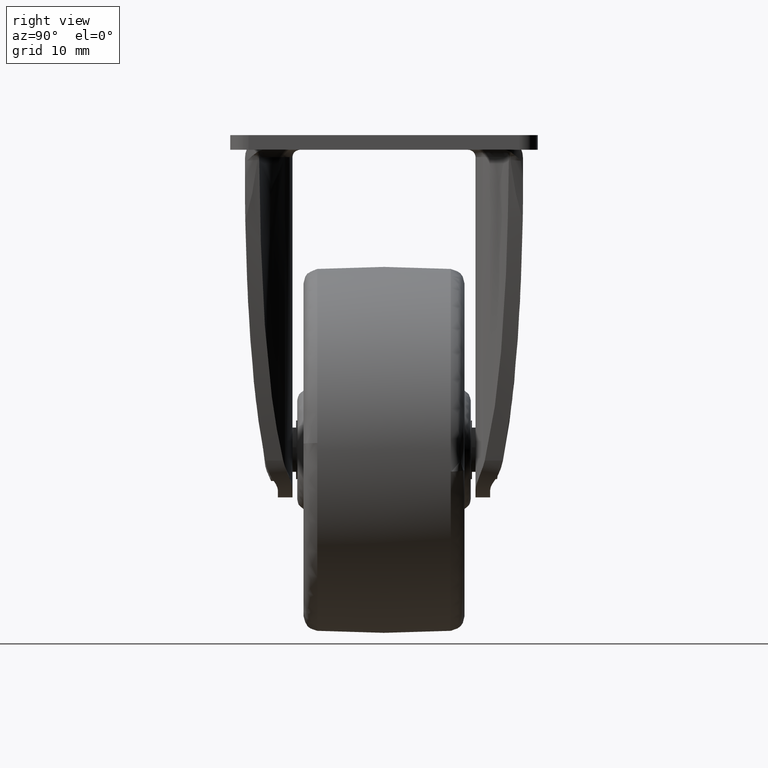
[diagram: clean part render]
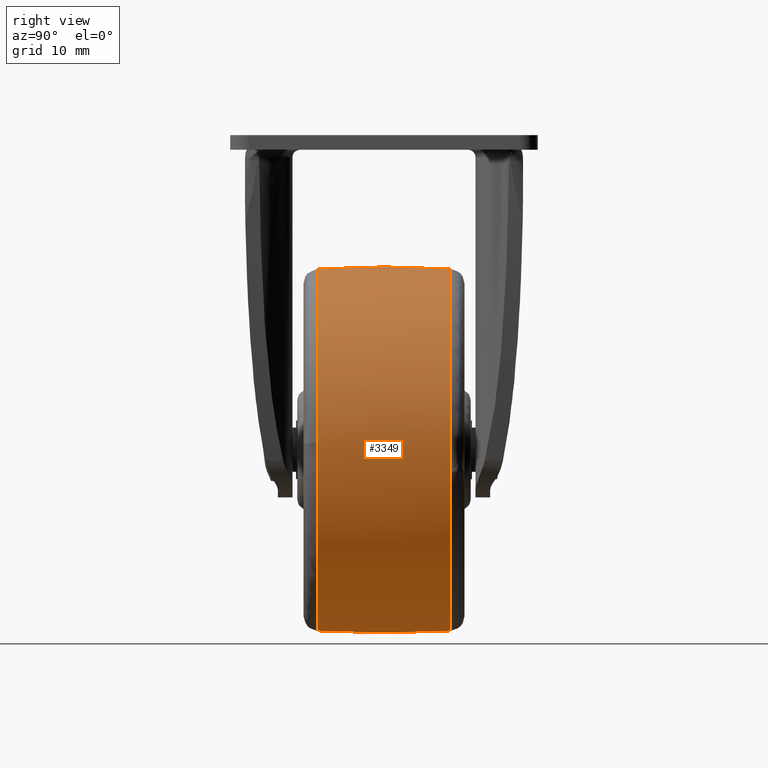
[diagram: same view with one face highlighted and labeled with its STEP entity id]
A machine part, right view. The second image highlights one B-rep face of the part: STEP entity #3349.
In plain terms, the highlighted face is a freeform B-spline surface patch.
Its self-contained STEP definition (entity closure, byte-faithful):
#2238=CARTESIAN_POINT('',(6.689324917442004,-9.121621713731903,-66.800206337786008));
#2239=VERTEX_POINT('',#2238);
#2253=CARTESIAN_POINT('',(24.704830497591310,-9.121624188660775,-42.068208362229058));
#2254=VERTEX_POINT('',#2253);
#2255=CARTESIAN_POINT('',(6.689324917442004,-9.121621713731903,-66.800206337786008));
#2256=CARTESIAN_POINT('',(24.722396517661792,-9.121622222126335,-61.731801777029681));
#2257=CARTESIAN_POINT('',(24.722396517661799,-9.121624099825681,-43.000000150981087));
#2258=CARTESIAN_POINT('',(24.722396517661799,-9.121624146544267,-42.533938680403537));
#2259=CARTESIAN_POINT('',(24.704830497591306,-9.121624188660775,-42.068208362229058));
#2267=(BOUNDED_CURVE()B_SPLINE_CURVE(2,(#2255,#2256,#2257,#2258,#2259),.UNSPECIFIED.,.F.,.U.)B_SPLINE_CURVE_WITH_KNOTS((3,2,3),(0.046107938924666,0.250000000000000,0.256613472520419),.UNSPECIFIED.)CURVE()GEOMETRIC_REPRESENTATION_ITEM()RATIONAL_B_SPLINE_CURVE((0.911887946995312,0.761125591764546,1.0,0.992251834983841,0.984913608179026))REPRESENTATION_ITEM(''));
#2268=EDGE_CURVE('',#2239,#2254,#2267,.T.);
#2367=CARTESIAN_POINT('',(0.0,-9.121626578029773,-18.277603784300371));
#2368=VERTEX_POINT('',#2367);
#2369=CARTESIAN_POINT('',(24.704830497591306,-9.121624188660775,-42.068208362229058));
#2370=CARTESIAN_POINT('',(23.807520620799281,-9.121626578029773,-18.277603784300371));
#2371=CARTESIAN_POINT('',(0.0,-9.121626578029773,-18.277603784300371));
#2379=(BOUNDED_CURVE()B_SPLINE_CURVE(2,(#2369,#2370,#2371),.UNSPECIFIED.,.F.,.U.)B_SPLINE_CURVE_WITH_KNOTS((3,3),(0.256613472520419,0.500000000000000),.UNSPECIFIED.)CURVE()GEOMETRIC_REPRESENTATION_ITEM()RATIONAL_B_SPLINE_CURVE((0.984913608179026,0.714854946202707,1.0))REPRESENTATION_ITEM(''));
#2380=EDGE_CURVE('',#2254,#2368,#2379,.T.);
#2382=CARTESIAN_POINT('',(-24.557048597239341,-9.121634293194809,-40.145492057110388));
#2383=VERTEX_POINT('',#2382);
#2397=CARTESIAN_POINT('',(0.0,-9.121621621621589,-67.722396517661792));
#2398=VERTEX_POINT('',#2397);
#2399=CARTESIAN_POINT('',(-24.557048597239337,-9.121634293194809,-40.145492057110381));
#2400=CARTESIAN_POINT('',(-24.722395770564820,-9.121633966383811,-41.567957210385920));
#2401=CARTESIAN_POINT('',(-24.722395792775419,-9.121633599383870,-43.000000084260677));
#2402=CARTESIAN_POINT('',(-24.722396176213106,-9.121627263597260,-67.722396557351729));
#2403=CARTESIAN_POINT('',(0.0,-9.121621621621589,-67.722396517661792));
#2411=(BOUNDED_CURVE()B_SPLINE_CURVE(2,(#2399,#2400,#2401,#2402,#2403),.UNSPECIFIED.,.F.,.U.)B_SPLINE_CURVE_WITH_KNOTS((3,2,3),(0.730000306038309,0.750000000000000,1.0),.UNSPECIFIED.)CURVE()GEOMETRIC_REPRESENTATION_ITEM()RATIONAL_B_SPLINE_CURVE((0.956886720549122,0.976568901041105,1.0,0.707106781186548,1.0))REPRESENTATION_ITEM(''));
#2412=EDGE_CURVE('',#2383,#2398,#2411,.T.);
#2414=CARTESIAN_POINT('',(0.0,-9.121621621621589,-67.722396517661792));
#2415=CARTESIAN_POINT('',(3.408229018041169,-9.121621621621589,-67.722396517661792));
#2416=CARTESIAN_POINT('',(6.689324917442004,-9.121621713731903,-66.800206337786008));
#2424=(BOUNDED_CURVE()B_SPLINE_CURVE(2,(#2414,#2415,#2416),.UNSPECIFIED.,.F.,.U.)B_SPLINE_CURVE_WITH_KNOTS((3,3),(0.0,0.046107938924666),.UNSPECIFIED.)CURVE()GEOMETRIC_REPRESENTATION_ITEM()RATIONAL_B_SPLINE_CURVE((1.0,0.945981189422002,0.911887946995312))REPRESENTATION_ITEM(''));
#2425=EDGE_CURVE('',#2398,#2239,#2424,.T.);
#2460=CARTESIAN_POINT('',(24.544444815158379,9.121622620066162,-45.960931774214323));
#2461=VERTEX_POINT('',#2460);
#2462=CARTESIAN_POINT('',(0.0,9.121623894445101,-18.277603620806701));
#2463=VERTEX_POINT('',#2462);
#2464=CARTESIAN_POINT('',(24.544444815158379,9.121622620066162,-45.960931774214323));
#2465=CARTESIAN_POINT('',(24.722396517661799,9.121622689735146,-44.485813361554349));
#2466=CARTESIAN_POINT('',(24.722396517661799,9.121622758033364,-43.000000069234247));
#2467=CARTESIAN_POINT('',(24.722396517661789,9.121623894445101,-18.277603620806708));
#2468=CARTESIAN_POINT('',(0.0,9.121623894445101,-18.277603620806701));
#2476=(BOUNDED_CURVE()B_SPLINE_CURVE(2,(#2464,#2465,#2466,#2467,#2468),.UNSPECIFIED.,.F.,.U.)B_SPLINE_CURVE_WITH_KNOTS((3,2,3),(0.229267596699547,0.250000000000000,0.500000000000000),.UNSPECIFIED.)CURVE()GEOMETRIC_REPRESENTATION_ITEM()RATIONAL_B_SPLINE_CURVE((0.955449598528834,0.975710478654367,1.0,0.707106781186548,1.0))REPRESENTATION_ITEM(''));
#2477=EDGE_CURVE('',#2461,#2463,#2476,.T.);
#2526=CARTESIAN_POINT('',(-24.673611907780160,9.121631621725744,-41.447667916856901));
#2527=VERTEX_POINT('',#2526);
#2541=CARTESIAN_POINT('',(-24.557048732616071,9.121631869949166,-40.145491943116667));
#2542=VERTEX_POINT('',#2541);
#2543=CARTESIAN_POINT('',(-24.557048732616071,9.121631869949166,-40.145491943116667));
#2544=CARTESIAN_POINT('',(-24.632551927697214,9.121631749254613,-40.795038352630378));
#2545=CARTESIAN_POINT('',(-24.673611907780160,9.121631621725744,-41.447667916856894));
#2553=(BOUNDED_CURVE()B_SPLINE_CURVE(2,(#2543,#2544,#2545),.UNSPECIFIED.,.F.,.U.)B_SPLINE_CURVE_WITH_KNOTS((3,3),(0.730000305370509,0.739031910515449),.UNSPECIFIED.)CURVE()GEOMETRIC_REPRESENTATION_ITEM()RATIONAL_B_SPLINE_CURVE((0.956886719234726,0.965774939314741,0.975427679973252))REPRESENTATION_ITEM(''));
#2554=EDGE_CURVE('',#2542,#2527,#2553,.T.);
#2595=CARTESIAN_POINT('',(0.0,9.121621621621630,-67.722396517661792));
#2596=VERTEX_POINT('',#2595);
#2597=CARTESIAN_POINT('',(0.0,9.121621621621630,-67.722396517661792));
#2598=CARTESIAN_POINT('',(21.919239359861798,9.121621621621630,-67.722396517661792));
#2599=CARTESIAN_POINT('',(24.544444815158382,9.121622620066162,-45.960931774214323));
#2607=(BOUNDED_CURVE()B_SPLINE_CURVE(2,(#2597,#2598,#2599),.UNSPECIFIED.,.F.,.U.)B_SPLINE_CURVE_WITH_KNOTS((3,3),(0.0,0.229267596699547),.UNSPECIFIED.)CURVE()GEOMETRIC_REPRESENTATION_ITEM()RATIONAL_B_SPLINE_CURVE((1.0,0.731396302532181,0.955449598528834))REPRESENTATION_ITEM(''));
#2608=EDGE_CURVE('',#2596,#2461,#2607,.T.);
#2610=CARTESIAN_POINT('',(-24.673611907780160,9.121631621725744,-41.447667916856901));
#2611=CARTESIAN_POINT('',(-24.722395921646239,9.121631469852337,-42.223067442947936));
#2612=CARTESIAN_POINT('',(-24.722395931391990,9.121631308819000,-43.000000068147941));
#2613=CARTESIAN_POINT('',(-24.722396241506708,9.121626184655231,-67.722396549762024));
#2614=CARTESIAN_POINT('',(0.0,9.121621621621630,-67.722396517661792));
#2622=(BOUNDED_CURVE()B_SPLINE_CURVE(2,(#2610,#2611,#2612,#2613,#2614),.UNSPECIFIED.,.F.,.U.)B_SPLINE_CURVE_WITH_KNOTS((3,2,3),(0.739031910515448,0.750000000000000,1.0),.UNSPECIFIED.)CURVE()GEOMETRIC_REPRESENTATION_ITEM()RATIONAL_B_SPLINE_CURVE((0.975427679973251,0.987150083866542,1.0,0.707106781186548,1.0))REPRESENTATION_ITEM(''));
#2623=EDGE_CURVE('',#2527,#2596,#2622,.T.);
#3278=CARTESIAN_POINT('',(-24.499261751210518,-10.030940992342105,-40.152164881218859));
#3279=CARTESIAN_POINT('',(-25.167068610948501,-2.432914E-014,-40.074537896086113));
#3280=CARTESIAN_POINT('',(-24.499261751210533,10.030940992342055,-40.152164881218859));
#3281=CARTESIAN_POINT('',(-24.664224926360241,-10.030940992342105,-41.571304627284498));
#3282=CARTESIAN_POINT('',(-25.336528392611825,-2.582536E-014,-41.532360899915709));
#3283=CARTESIAN_POINT('',(-24.664224926360252,10.030940992342055,-41.571304627284498));
#3284=CARTESIAN_POINT('',(-24.664224926360241,-10.030940992342108,-43.000000000000007));
#3285=CARTESIAN_POINT('',(-25.336528392611825,-2.813026E-014,-43.000000000000007));
#3286=CARTESIAN_POINT('',(-24.664224926360241,10.030940992342050,-43.000000000000007));
#3287=CARTESIAN_POINT('',(-24.664224926360244,-10.030940992342110,-67.664224926360234));
#3288=CARTESIAN_POINT('',(-25.336528392611825,-3.017959E-014,-68.336528392611825));
#3289=CARTESIAN_POINT('',(-24.664224926360244,10.030940992342048,-67.664224926360234));
#3290=CARTESIAN_POINT('',(0.0,-10.030940992342108,-67.664224926360234));
#3291=CARTESIAN_POINT('',(0.0,-2.813026E-014,-68.336528392611825));
#3292=CARTESIAN_POINT('',(0.0,10.030940992342050,-67.664224926360234));
#3293=CARTESIAN_POINT('',(24.664224926360227,-10.030940992342110,-67.664224926360234));
#3294=CARTESIAN_POINT('',(25.336528392611825,-3.017959E-014,-68.336528392611825));
#3295=CARTESIAN_POINT('',(24.664224926360244,10.030940992342048,-67.664224926360234));
#3296=CARTESIAN_POINT('',(24.664224926360241,-10.030940992342108,-43.000000000000007));
#3297=CARTESIAN_POINT('',(25.336528392611825,-2.813026E-014,-43.000000000000007));
#3298=CARTESIAN_POINT('',(24.664224926360241,10.030940992342050,-43.000000000000007));
#3299=CARTESIAN_POINT('',(24.664224926360244,-10.030940992342110,-18.335775073639752));
#3300=CARTESIAN_POINT('',(25.336528392611825,-3.017959E-014,-17.663471607388175));
#3301=CARTESIAN_POINT('',(24.664224926360244,10.030940992342048,-18.335775073639752));
#3302=CARTESIAN_POINT('',(0.0,-10.030940992342108,-18.335775073639752));
#3303=CARTESIAN_POINT('',(0.0,-2.813026E-014,-17.663471607388168));
#3304=CARTESIAN_POINT('',(0.0,10.030940992342050,-18.335775073639752));
#3312=(BOUNDED_SURFACE()B_SPLINE_SURFACE(2,2,((#3278,#3281,#3284,#3287,#3290,#3293,#3296,#3299,#3302),(#3279,#3282,#3285,#3288,#3291,#3294,#3297,#3300,#3303),(#3280,#3283,#3286,#3289,#3292,#3295,#3298,#3301,#3304)),.UNSPECIFIED.,.F.,.F.,.U.)B_SPLINE_SURFACE_WITH_KNOTS((3,3),(3,2,2,2,3),(0.0,20.084361411123592),(0.0,3.313707807691297,44.735064045000797,86.156420282310307,127.577776519619800),.UNSPECIFIED.)GEOMETRIC_REPRESENTATION_ITEM()RATIONAL_B_SPLINE_SURFACE(((0.878128461365174,0.896190896982613,0.917693795672736,0.648907505973014,0.917693795672736,0.648907505973014,0.917693795672736,0.648907505973014,0.917693795672736),(0.876162770373306,0.894184773219749,0.915639537660597,0.647454926202324,0.915639537660597,0.647454926202324,0.915639537660597,0.647454926202324,0.915639537660597),(0.878128461365174,0.896190896982613,0.917693795672736,0.648907505973014,0.917693795672736,0.648907505973014,0.917693795672736,0.648907505973014,0.917693795672736)))REPRESENTATION_ITEM('')SURFACE());
#3313=ORIENTED_EDGE('',*,*,#2412,.F.);
#3314=CARTESIAN_POINT('',(-24.557048597239341,-9.121634293194809,-40.145492057110388));
#3315=CARTESIAN_POINT('',(-25.109054862429048,-0.000001216119988,-40.081325863636742));
#3316=CARTESIAN_POINT('',(-24.557048732616074,9.121631869949166,-40.145491943116674));
#3324=(BOUNDED_CURVE()B_SPLINE_CURVE(2,(#3314,#3315,#3316),.UNSPECIFIED.,.F.,.U.)B_SPLINE_CURVE_WITH_KNOTS((3,3),(0.449531568453340,0.550468418114401),.UNSPECIFIED.)CURVE()GEOMETRIC_REPRESENTATION_ITEM()RATIONAL_B_SPLINE_CURVE((0.877958024617313,0.876333192281789,0.877958024184861))REPRESENTATION_ITEM(''));
#3325=EDGE_CURVE('',#2383,#2542,#3324,.T.);
#3326=ORIENTED_EDGE('',*,*,#3325,.T.);
#3327=ORIENTED_EDGE('',*,*,#2554,.T.);
#3328=ORIENTED_EDGE('',*,*,#2623,.T.);
#3329=ORIENTED_EDGE('',*,*,#2608,.T.);
#3330=ORIENTED_EDGE('',*,*,#2477,.T.);
#3331=CARTESIAN_POINT('',(0.0,-9.121626578029773,-18.277603784300371));
#3332=CARTESIAN_POINT('',(0.0,-0.000001346772650,-17.721881586103581));
#3333=CARTESIAN_POINT('',(0.0,9.121623894445103,-18.277603620806655));
#3341=(BOUNDED_CURVE()B_SPLINE_CURVE(2,(#3331,#3332,#3333),.UNSPECIFIED.,.F.,.U.)B_SPLINE_CURVE_WITH_KNOTS((3,3),(0.449531611219193,0.550468373905466),.UNSPECIFIED.)CURVE()GEOMETRIC_REPRESENTATION_ITEM()RATIONAL_B_SPLINE_CURVE((0.917515686088710,0.915817647494868,0.917515685588221))REPRESENTATION_ITEM(''));
#3342=EDGE_CURVE('',#2368,#2463,#3341,.T.);
#3343=ORIENTED_EDGE('',*,*,#3342,.F.);
#3344=ORIENTED_EDGE('',*,*,#2380,.F.);
#3345=ORIENTED_EDGE('',*,*,#2268,.F.);
#3346=ORIENTED_EDGE('',*,*,#2425,.F.);
#3347=EDGE_LOOP('',(#3313,#3326,#3327,#3328,#3329,#3330,#3343,#3344,#3345,#3346));
#3348=FACE_OUTER_BOUND('',#3347,.T.);
#3349=ADVANCED_FACE('',(#3348),#3312,.T.);